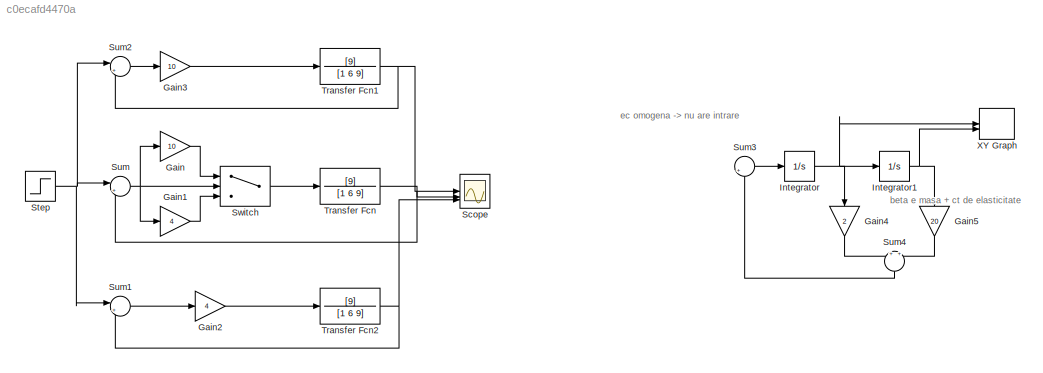
MODEL slx_c0ecafd4470a
KIND model
CONFIG AbsTol = auto
CONFIG EnableMultiTasking = off
CONFIG FixedStep = auto
CONFIG MaxStep = 1e-3
CONFIG MinStep = auto
CONFIG RelTol = 1e-3
CONFIG SampleTimeConstraint = Unconstrained
CONFIG SolverName = VariableStepAuto
CONFIG StartTime = 0.0
CONFIG StopTime = 50
BLOCK [Gain] Gain
  Gain = 10
BLOCK [Gain] Gain1
  Gain = 4
BLOCK [Gain] Gain2
  Gain = 4
BLOCK [Gain] Gain3
  Gain = 10
BLOCK [Gain] Gain4
  Gain = 2
  NameLocation = left
BLOCK [Gain] Gain5
  Gain = 20
  NameLocation = left
BLOCK [Integrator] Integrator
  InitialCondition = 3
BLOCK [Integrator] Integrator1
  InitialCondition = 5
BLOCK [Scope] Scope
  Floating = off
  NumInputPorts = 3
  ScopeSpecificationString = Simulink.scopes.TimeScopeBlockCfg('CurrentConfiguration', extmgr.ConfigurationSet(extmgr.Configuration('Core','General UI',true),extmgr.Configuration('Core','Source UI',true),extmgr.Configuration('Sources','WiredSimulink',true),extmgr.Configuration('Visuals','Time Domain',true,'SerializedDisplays',{struct('MinYLimReal','-0.15572','MaxYLimReal','1.40144','YLabelReal','','MinYLimMag','0.00000','MaxY...<+1418ch>
BLOCK [Step] Step
  SampleTime = 0
  Time = 0
BLOCK [Sum] Sum
  Inputs = |+-
BLOCK [Sum] Sum1
  Inputs = |+-
BLOCK [Sum] Sum2
  Inputs = |+-
BLOCK [Sum] Sum3
  Inputs = |+-
BLOCK [Sum] Sum4
  Inputs = +|+
  NameLocation = left
BLOCK [Switch] Switch
  Criteria = u2 > Threshold
  InputSameDT = off
  SaturateOnIntegerOverflow = off
  Threshold = 0.5
BLOCK [TransferFcn] Transfer Fcn
  Denominator = [1 6 9]
  Numerator = [9]
BLOCK [TransferFcn] Transfer Fcn1
  Denominator = [1 6 9]
  Numerator = [9]
BLOCK [TransferFcn] Transfer Fcn2
  Denominator = [1 6 9]
  Numerator = [9]
BLOCK [Record] XY Graph
  CompatibilityTag = XY
  FileSettingsInternal = {"entries":[{"content":{"excelSettings":{"content":{},"type":"Streamout.ExcelSettings"}},"type":"Streamout.FileSettingStorage","uuid":""}],"packageUris":["http:\/\/schema.mathworks.com\/mf0\/streamout_blocks\/R2020a"],"version":"1.0"}
  Layout = [1 1]
  SignalsInternal = {"entries":[{"content":{"signals":[{"content":{"blockPath":[],"dimensions":[1],"domain":"","lineColor":"#a2142f","plots":[1],"port":1,"sid":[""],"signalID":281,"signalName":"Integrator"},"type":"RecordBlkView.Signal","uuid":""},{"content":{"blockPath":[],"dimensions":[1],"domain":"","lineColor":"#139fff","plots":[1],"port":2,"sid":[""],"signalID":285,"signalName":"Integrator1"},"type":"RecordBlkVi...<+167ch>
  VisualizationBindings = {"xyplotplugin":{"info":[{"series":[{"bindingParametersList":[{"parameter":"X-Axis","signalID":281,"signalName":"Integrator"},{"parameter":"Y-Axis","signalID":285,"signalName":"Integrator1"}],"seriesID":2632}],"subplotID":1}]}}
ANNOTATION (root): beta e masa + ct de elasticitate
ANNOTATION (root): ec omogena -> nu are intrare
LINE Gain1:1 -> Switch:3
LINE Gain2:1 -> Transfer Fcn2:1
LINE Gain3:1 -> Transfer Fcn1:1
LINE Gain4:1 -> Sum4:1
LINE Gain5:1 -> Sum4:2
LINE Gain:1 -> Switch:1
NET Integrator1:1 -> Gain5:1, XY Graph:2
NET Integrator:1 -> Gain4:1, Integrator1:1, XY Graph:1
NET Step:1 -> Sum1:1, Sum2:1, Sum:1
LINE Sum1:1 -> Gain2:1
LINE Sum2:1 -> Gain3:1
LINE Sum3:1 -> Integrator:1
LINE Sum4:1 -> Sum3:2
NET Sum:1 -> Gain1:1, Gain:1, Switch:2
LINE Switch:1 -> Transfer Fcn:1
NET Transfer Fcn1:1 -> Scope:1, Sum2:2
NET Transfer Fcn2:1 -> Scope:3, Sum1:2
NET Transfer Fcn:1 -> Scope:2, Sum:2
note: NET lines group one-source signal fan-out (src -> all destinations, sorted); 1:1 wires keep LINE
